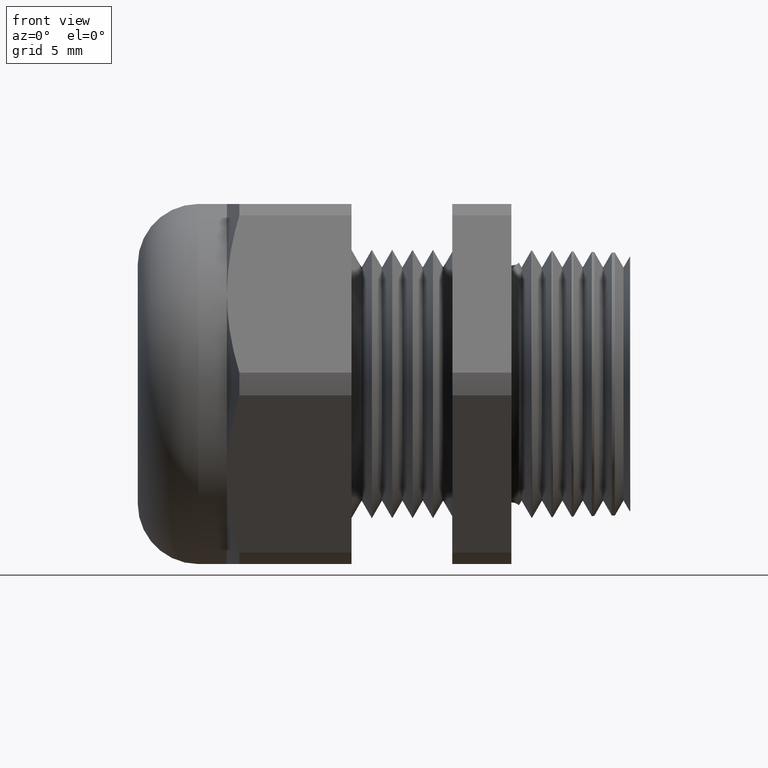
[diagram: clean part render]
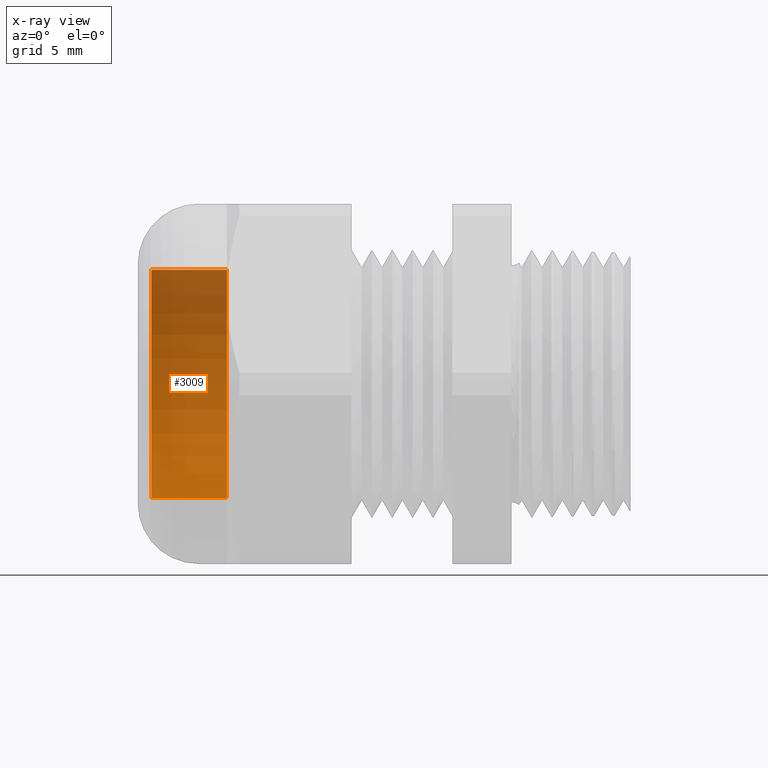
[diagram: x-ray — body ghosted, one internal face saturated and labeled with its STEP entity id]
A machine part, front view, then the same camera in x-ray: the body is ghosted and one INTERNAL B-rep face — a face not visible from any outside direction — is saturated and labeled: STEP entity #3009.
In plain terms, the highlighted cylindrical surface (partial cylindrical patch) has radius 8.528 mm, axis along (-1, 0, 0).
Its self-contained STEP definition (entity closure, byte-faithful):
#1797 = DIRECTION ( 'NONE',  ( 0.0000000000000000000, 0.0000000000000000000, 1.000000000000000000 ) ) ;
#1798 = DIRECTION ( 'NONE',  ( -1.000000000000000000, 0.0000000000000000000, 0.0000000000000000000 ) ) ;
#1799 = AXIS2_PLACEMENT_3D ( 'NONE', #1808, #1798, #1797 ) ;
#1801 = CYLINDRICAL_SURFACE ( 'NONE', #1799, 0.3357499999999999400 ) ;
#1802 = FACE_OUTER_BOUND ( 'NONE', #3028, .T. ) ;
#1808 = CARTESIAN_POINT ( 'NONE',  ( -0.7238591030180623300, 0.0000000000000000000, 0.0000000000000000000 ) ) ;
#1826 = CARTESIAN_POINT ( 'NONE',  ( -0.8375000000000000200, 0.0000000000000000000, 0.3357499999999999400 ) ) ;
#1827 = DIRECTION ( 'NONE',  ( 0.0000000000000000000, 0.0000000000000000000, 1.000000000000000000 ) ) ;
#1828 = DIRECTION ( 'NONE',  ( -1.000000000000000000, 0.0000000000000000000, 0.0000000000000000000 ) ) ;
#1829 = CARTESIAN_POINT ( 'NONE',  ( -0.8375000000000000200, 0.0000000000000000000, 0.0000000000000000000 ) ) ;
#1830 = AXIS2_PLACEMENT_3D ( 'NONE', #1829, #1828, #1827 ) ;
#1831 = CIRCLE ( 'NONE', #1830, 0.3357499999999999400 ) ;
#1837 = DIRECTION ( 'NONE',  ( -1.000000000000000000, 0.0000000000000000000, 0.0000000000000000000 ) ) ;
#1838 = VECTOR ( 'NONE', #1837, 39.37007874015748100 ) ;
#1839 = CARTESIAN_POINT ( 'NONE',  ( -0.7238591030180623300, 4.111751628137237600E-017, -0.3357499999999999400 ) ) ;
#1840 = LINE ( 'NONE', #1839, #1838 ) ;
#1842 = CARTESIAN_POINT ( 'NONE',  ( -0.8375000000000000200, 4.111751628137237600E-017, -0.3357499999999999400 ) ) ;
#1933 = DIRECTION ( 'NONE',  ( -1.000000000000000000, 0.0000000000000000000, 0.0000000000000000000 ) ) ;
#1934 = VECTOR ( 'NONE', #1933, 39.37007874015748100 ) ;
#1935 = CARTESIAN_POINT ( 'NONE',  ( -0.7238591030180623300, 0.0000000000000000000, 0.3357499999999999400 ) ) ;
#1936 = LINE ( 'NONE', #1935, #1934 ) ;
#2042 = DIRECTION ( 'NONE',  ( 0.0000000000000000000, 0.0000000000000000000, 1.000000000000000000 ) ) ;
#2043 = DIRECTION ( 'NONE',  ( -1.000000000000000000, 0.0000000000000000000, 0.0000000000000000000 ) ) ;
#2044 = CARTESIAN_POINT ( 'NONE',  ( -1.060000000000000300, 0.0000000000000000000, 0.0000000000000000000 ) ) ;
#2045 = AXIS2_PLACEMENT_3D ( 'NONE', #2044, #2043, #2042 ) ;
#2046 = CIRCLE ( 'NONE', #2045, 0.3357499999999999400 ) ;
#2052 = CARTESIAN_POINT ( 'NONE',  ( -1.060000000000000300, 4.111751628137237600E-017, -0.3357499999999999400 ) ) ;
#2062 = CARTESIAN_POINT ( 'NONE',  ( -1.060000000000000300, 0.0000000000000000000, 0.3357499999999999400 ) ) ;
#2997 = ORIENTED_EDGE ( 'NONE', *, *, #3129, .F. ) ;
#3001 = ORIENTED_EDGE ( 'NONE', *, *, #3078, .F. ) ;
#3009 = ADVANCED_FACE ( 'NONE', ( #1802 ), #1801, .T. ) ;
#3010 = ORIENTED_EDGE ( 'NONE', *, *, #3033, .T. ) ;
#3012 = ORIENTED_EDGE ( 'NONE', *, *, #3031, .T. ) ;
#3024 = VERTEX_POINT ( 'NONE', #1842 ) ;
#3028 = EDGE_LOOP ( 'NONE', ( #3010, #3012, #2997, #3001 ) ) ;
#3031 = EDGE_CURVE ( 'NONE', #3024, #3175, #1840, .T. ) ;
#3033 = EDGE_CURVE ( 'NONE', #3034, #3024, #1831, .T. ) ;
#3034 = VERTEX_POINT ( 'NONE', #1826 ) ;
#3078 = EDGE_CURVE ( 'NONE', #3034, #3172, #1936, .T. ) ;
#3129 = EDGE_CURVE ( 'NONE', #3172, #3175, #2046, .T. ) ;
#3172 = VERTEX_POINT ( 'NONE', #2062 ) ;
#3175 = VERTEX_POINT ( 'NONE', #2052 ) ;